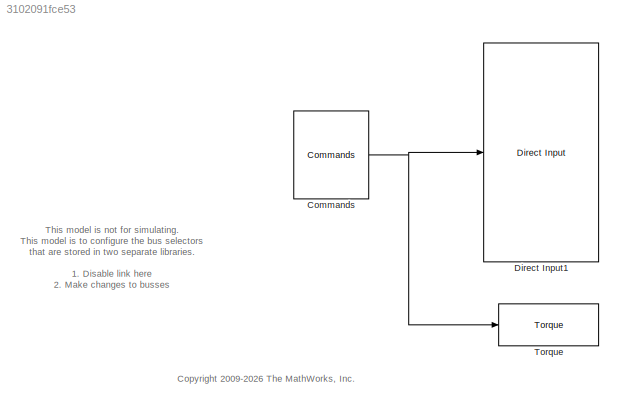
MODEL slx_3102091fce53
KIND model
CONFIG EnableMultiTasking = on
CONFIG SolverName = ode45
BLOCK [Reference] Commands  REF=Turbine_Input_Lib/Commands
  SourceBlock = Turbine_Input_Lib/Commands
BLOCK [Reference] Direct Input1  REF=Main_Controller_Lib/Direct Input
  SourceBlock = Main_Controller_Lib/Direct Input
BLOCK [Reference] Torque  REF=Wind_Lib/Torque
  SourceBlock = Wind_Lib/Torque
ANNOTATION (root): <copyright redacted>
ANNOTATION (root): This model is not for simulating. This model is to configure the bus selectors that are stored in two separate libraries. 1. Disable link here 2. Make changes to busses 3. Update diagram 4. Restore Link, and UPDATE LIBRARY
NET Commands:1 -> Direct Input1:1, Torque:1
note: NET lines group one-source signal fan-out (src -> all destinations, sorted); 1:1 wires keep LINE
